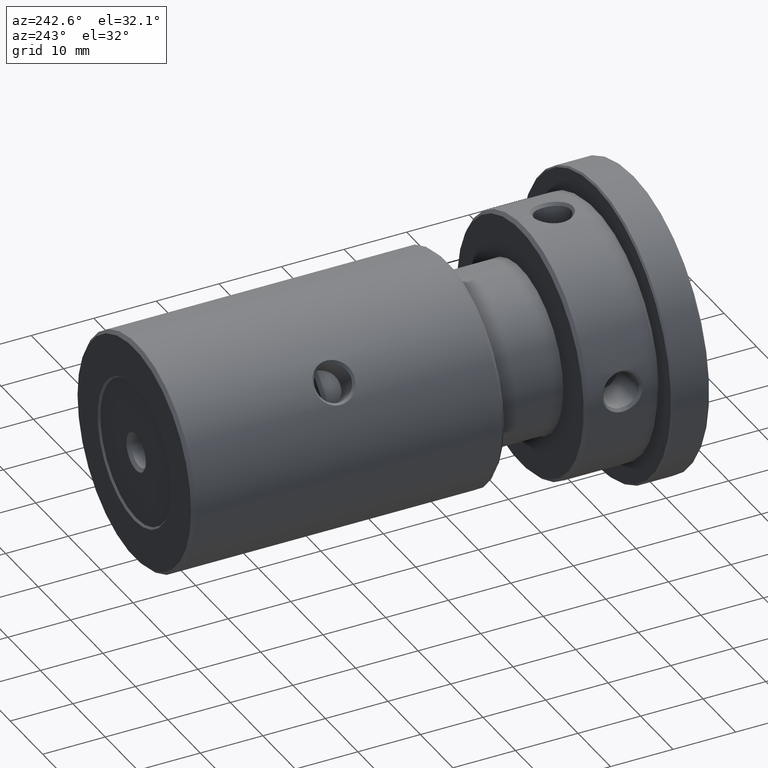
[diagram: clean part render]
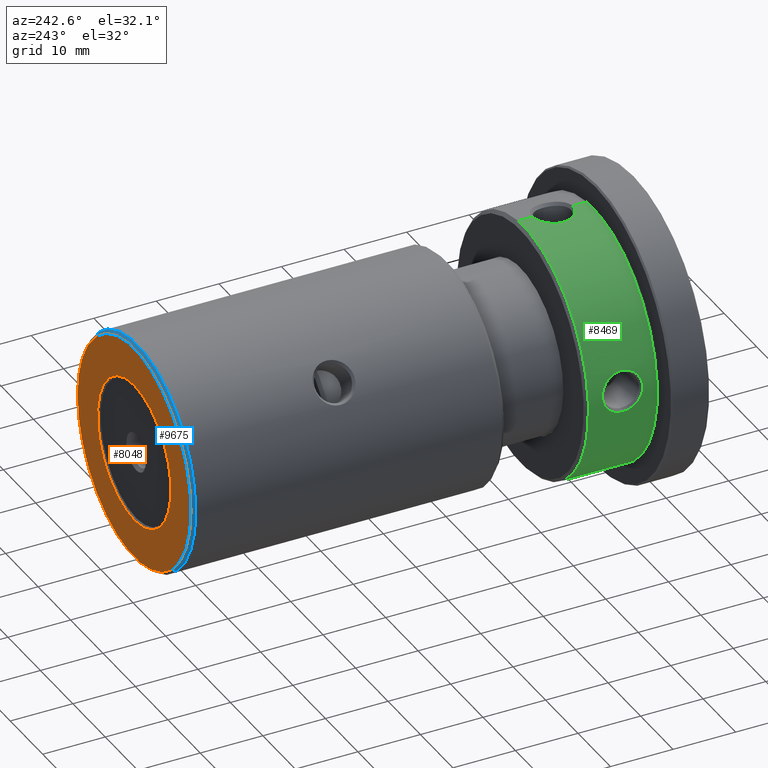
[diagram: same view with three faces highlighted in distinct colors, each labeled with its STEP entity id]
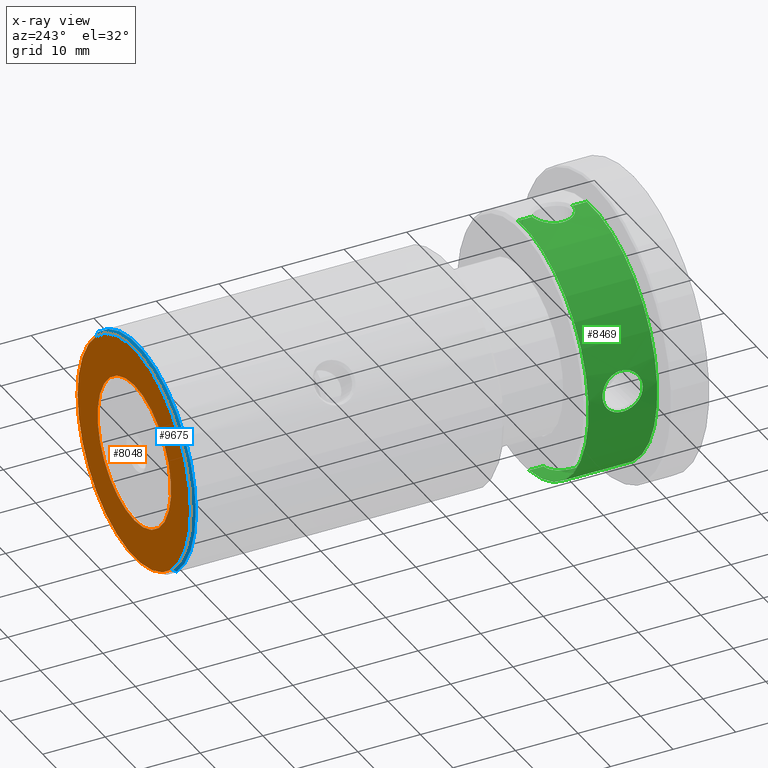
[diagram: x-ray of the same camera — body ghosted, the three highlighted faces saturated]
A machine part, auxiliary view with three faces highlighted in distinct colors.
The next image is the same camera in x-ray (body ghosted, the three faces saturated) — at least one of them is partly hidden behind the body in this view.
Their STEP definitions:

[orange] entity #8048 — the highlighted planar face has unit normal (0, 1, 0).
#100 = DIRECTION ( 'NONE',  ( 0.000000000000000000, 1.000000000000000000, 0.000000000000000000 ) ) ;
#199 = CARTESIAN_POINT ( 'NONE',  ( 1.383850883036508870E-15, 25.00000000000000000, -11.29999999999999716 ) ) ;
#369 = CIRCLE ( 'NONE', #6810, 11.29999999999999716 ) ;
#642 = EDGE_CURVE ( 'NONE', #4291, #8937, #1104, .T. ) ;
#779 = DIRECTION ( 'NONE',  ( 0.000000000000000000, 0.000000000000000000, 1.000000000000000000 ) ) ;
#853 = EDGE_CURVE ( 'NONE', #8937, #4291, #9526, .T. ) ;
#897 = EDGE_LOOP ( 'NONE', ( #1538, #2937 ) ) ;
#1100 = DIRECTION ( 'NONE',  ( 0.000000000000000000, 0.000000000000000000, 1.000000000000000000 ) ) ;
#1104 = CIRCLE ( 'NONE', #5215, 17.50000000000000000 ) ;
#1538 = ORIENTED_EDGE ( 'NONE', *, *, #642, .T. ) ;
#1556 = ORIENTED_EDGE ( 'NONE', *, *, #3182, .T. ) ;
#1753 = CARTESIAN_POINT ( 'NONE',  ( 0.000000000000000000, 25.00000000000000000, 0.000000000000000000 ) ) ;
#1820 = AXIS2_PLACEMENT_3D ( 'NONE', #2496, #10793, #9065 ) ;
#2453 = CARTESIAN_POINT ( 'NONE',  ( 2.173748068486551641E-15, 25.00000000000000000, 17.50000000000000000 ) ) ;
#2496 = CARTESIAN_POINT ( 'NONE',  ( 0.000000000000000000, 25.00000000000000000, 0.000000000000000000 ) ) ;
#2565 = CARTESIAN_POINT ( 'NONE',  ( 0.000000000000000000, 25.00000000000000000, 11.29999999999999716 ) ) ;
#2608 = DIRECTION ( 'NONE',  ( 0.000000000000000000, 1.000000000000000000, 0.000000000000000000 ) ) ;
#2937 = ORIENTED_EDGE ( 'NONE', *, *, #853, .T. ) ;
#3182 = EDGE_CURVE ( 'NONE', #9748, #11583, #9800, .T. ) ;
#3349 = DIRECTION ( 'NONE',  ( -0.000000000000000000, -1.000000000000000000, -0.000000000000000000 ) ) ;
#4141 = EDGE_LOOP ( 'NONE', ( #11968, #1556 ) ) ;
#4237 = AXIS2_PLACEMENT_3D ( 'NONE', #1753, #100, #779 ) ;
#4291 = VERTEX_POINT ( 'NONE', #8415 ) ;
#4338 = PLANE ( 'NONE',  #1820 ) ;
#5215 = AXIS2_PLACEMENT_3D ( 'NONE', #11889, #2608, #10968 ) ;
#5309 = FACE_OUTER_BOUND ( 'NONE', #897, .T. ) ;
#5941 = DIRECTION ( 'NONE',  ( -0.000000000000000000, -1.000000000000000000, -0.000000000000000000 ) ) ;
#6810 = AXIS2_PLACEMENT_3D ( 'NONE', #9566, #5941, #1100 ) ;
#7081 = DIRECTION ( 'NONE',  ( 0.000000000000000000, 0.000000000000000000, 1.000000000000000000 ) ) ;
#7431 = AXIS2_PLACEMENT_3D ( 'NONE', #8809, #3349, #7081 ) ;
#8048 = ADVANCED_FACE ( 'NONE', ( #5309, #11037 ), #4338, .T. ) ;
#8415 = CARTESIAN_POINT ( 'NONE',  ( 0.000000000000000000, 25.00000000000000000, -17.50000000000000000 ) ) ;
#8809 = CARTESIAN_POINT ( 'NONE',  ( 0.000000000000000000, 25.00000000000000000, 0.000000000000000000 ) ) ;
#8937 = VERTEX_POINT ( 'NONE', #2453 ) ;
#9065 = DIRECTION ( 'NONE',  ( 0.000000000000000000, -0.000000000000000000, 1.000000000000000000 ) ) ;
#9526 = CIRCLE ( 'NONE', #4237, 17.50000000000000000 ) ;
#9566 = CARTESIAN_POINT ( 'NONE',  ( 0.000000000000000000, 25.00000000000000000, 0.000000000000000000 ) ) ;
#9748 = VERTEX_POINT ( 'NONE', #199 ) ;
#9800 = CIRCLE ( 'NONE', #7431, 11.29999999999999716 ) ;
#10793 = DIRECTION ( 'NONE',  ( 0.000000000000000000, 1.000000000000000000, 0.000000000000000000 ) ) ;
#10968 = DIRECTION ( 'NONE',  ( 0.000000000000000000, 0.000000000000000000, 1.000000000000000000 ) ) ;
#11037 = FACE_BOUND ( 'NONE', #4141, .T. ) ;
#11205 = EDGE_CURVE ( 'NONE', #11583, #9748, #369, .T. ) ;
#11583 = VERTEX_POINT ( 'NONE', #2565 ) ;
#11889 = CARTESIAN_POINT ( 'NONE',  ( 0.000000000000000000, 25.00000000000000000, 0.000000000000000000 ) ) ;
#11968 = ORIENTED_EDGE ( 'NONE', *, *, #11205, .T. ) ;

[blue] entity #9675 — the highlighted conical surface has half-angle 45 deg.
#366 = DIRECTION ( 'NONE',  ( 0.000000000000000000, -1.000000000000000000, 0.000000000000000000 ) ) ;
#393 = CONICAL_SURFACE ( 'NONE', #3520, 17.50000000000000000, 0.7853981633974344012 ) ;
#594 = VECTOR ( 'NONE', #8325, 999.9999999999998863 ) ;
#642 = EDGE_CURVE ( 'NONE', #4291, #8937, #1104, .T. ) ;
#858 = CIRCLE ( 'NONE', #2419, 18.00000000000000000 ) ;
#884 = CARTESIAN_POINT ( 'NONE',  ( 2.143131898507868248E-15, 25.00000000000000000, 17.50000000000000000 ) ) ;
#1104 = CIRCLE ( 'NONE', #5215, 17.50000000000000000 ) ;
#2027 = DIRECTION ( 'NONE',  ( 0.000000000000000000, 0.000000000000000000, -1.000000000000000000 ) ) ;
#2100 = EDGE_CURVE ( 'NONE', #2826, #6419, #858, .T. ) ;
#2419 = AXIS2_PLACEMENT_3D ( 'NONE', #8936, #366, #9747 ) ;
#2453 = CARTESIAN_POINT ( 'NONE',  ( 2.173748068486551641E-15, 25.00000000000000000, 17.50000000000000000 ) ) ;
#2552 = CARTESIAN_POINT ( 'NONE',  ( 0.000000000000000000, 24.49999999999998934, -18.00000000000000000 ) ) ;
#2608 = DIRECTION ( 'NONE',  ( 0.000000000000000000, 1.000000000000000000, 0.000000000000000000 ) ) ;
#2644 = EDGE_CURVE ( 'NONE', #4291, #6419, #12019, .T. ) ;
#2826 = VERTEX_POINT ( 'NONE', #6709 ) ;
#2885 = LINE ( 'NONE', #884, #4316 ) ;
#3520 = AXIS2_PLACEMENT_3D ( 'NONE', #11368, #11430, #2027 ) ;
#4080 = EDGE_CURVE ( 'NONE', #8937, #2826, #2885, .T. ) ;
#4291 = VERTEX_POINT ( 'NONE', #8415 ) ;
#4316 = VECTOR ( 'NONE', #9450, 999.9999999999998863 ) ;
#4826 = ORIENTED_EDGE ( 'NONE', *, *, #642, .F. ) ;
#5215 = AXIS2_PLACEMENT_3D ( 'NONE', #11889, #2608, #10968 ) ;
#5437 = CARTESIAN_POINT ( 'NONE',  ( 0.000000000000000000, 25.00000000000000000, -17.50000000000000000 ) ) ;
#5481 = ORIENTED_EDGE ( 'NONE', *, *, #2644, .T. ) ;
#5658 = ORIENTED_EDGE ( 'NONE', *, *, #2100, .F. ) ;
#6419 = VERTEX_POINT ( 'NONE', #2552 ) ;
#6709 = CARTESIAN_POINT ( 'NONE',  ( 2.204364238465235428E-15, 24.49999999999998934, 18.00000000000000000 ) ) ;
#8325 = DIRECTION ( 'NONE',  ( 0.000000000000000000, -0.7071067811865574537, -0.7071067811865376918 ) ) ;
#8415 = CARTESIAN_POINT ( 'NONE',  ( 0.000000000000000000, 25.00000000000000000, -17.50000000000000000 ) ) ;
#8936 = CARTESIAN_POINT ( 'NONE',  ( 0.000000000000000000, 24.49999999999998934, 0.000000000000000000 ) ) ;
#8937 = VERTEX_POINT ( 'NONE', #2453 ) ;
#9446 = ORIENTED_EDGE ( 'NONE', *, *, #4080, .F. ) ;
#9450 = DIRECTION ( 'NONE',  ( 8.659560562354813296E-17, -0.7071067811865574537, 0.7071067811865376918 ) ) ;
#9511 = FACE_OUTER_BOUND ( 'NONE', #10403, .T. ) ;
#9675 = ADVANCED_FACE ( 'NONE', ( #9511 ), #393, .T. ) ;
#9747 = DIRECTION ( 'NONE',  ( 0.000000000000000000, 0.000000000000000000, 1.000000000000000000 ) ) ;
#10403 = EDGE_LOOP ( 'NONE', ( #9446, #4826, #5481, #5658 ) ) ;
#10968 = DIRECTION ( 'NONE',  ( 0.000000000000000000, 0.000000000000000000, 1.000000000000000000 ) ) ;
#11368 = CARTESIAN_POINT ( 'NONE',  ( 0.000000000000000000, 25.00000000000000000, 0.000000000000000000 ) ) ;
#11430 = DIRECTION ( 'NONE',  ( 0.000000000000000000, -1.000000000000000000, 0.000000000000000000 ) ) ;
#11889 = CARTESIAN_POINT ( 'NONE',  ( 0.000000000000000000, 25.00000000000000000, 0.000000000000000000 ) ) ;
#12019 = LINE ( 'NONE', #5437, #594 ) ;

[green] entity #8469 — the highlighted cylindrical surface (partial cylindrical patch) has radius 20 mm, axis along (0, -1, 0).
#29 = CARTESIAN_POINT ( 'NONE',  ( 1.645448176409233243, -2.780378231756022611, -19.93242638923062771 ) ) ;
#65 = CARTESIAN_POINT ( 'NONE',  ( 2.788262015685843309, -1.698027887239357048, 19.80477755226930014 ) ) ;
#84 = CARTESIAN_POINT ( 'NONE',  ( 1.652714889811817134, 2.805758502887332195, -19.93554880062650980 ) ) ;
#128 = CARTESIAN_POINT ( 'NONE',  ( 19.96650705544221083, -3.005061850438728754, 1.161213496027606817 ) ) ;
#146 = CARTESIAN_POINT ( 'NONE',  ( 19.82937915713283061, 1.959213789856852683, 2.609622977698397683 ) ) ;
#186 = CARTESIAN_POINT ( 'NONE',  ( 19.98628399507041564, -3.128114863103091725, 0.7480492119858004330 ) ) ;
#226 = VERTEX_POINT ( 'NONE', #8189 ) ;
#235 = CARTESIAN_POINT ( 'NONE',  ( -6.033831151956498366E-15, -3.210814758110483336, -19.99999999993138289 ) ) ;
#311 = CARTESIAN_POINT ( 'NONE',  ( 19.74250960291540835, -0.7285416293103933461, 3.199025551527902245 ) ) ;
#370 = CARTESIAN_POINT ( 'NONE',  ( 19.94777545470313029, -2.884433045891778402, 1.457922330669101818 ) ) ;
#567 = CARTESIAN_POINT ( 'NONE',  ( 19.88272390286267566, 2.420099909733571142, -2.168143128924275853 ) ) ;
#692 = CARTESIAN_POINT ( 'NONE',  ( 19.94740817882312456, 2.881321743100946797, -1.452594321424510948 ) ) ;
#729 = CARTESIAN_POINT ( 'NONE',  ( 1.458472052092044891, 2.884325182636749751, 19.94775618502438519 ) ) ;
#840 = CARTESIAN_POINT ( 'NONE',  ( -6.033831151956498366E-15, -3.210814758110483336, -19.99999999993138289 ) ) ;
#878 = FACE_OUTER_BOUND ( 'NONE', #11169, .T. ) ;
#885 = CARTESIAN_POINT ( 'NONE',  ( 3.282740451652369273, 0.2126254003595224318, -19.72875097761793128 ) ) ;
#940 = CARTESIAN_POINT ( 'NONE',  ( 1.057610121580247808, 3.041468652754554913, -19.97228608819717266 ) ) ;
#1043 = CARTESIAN_POINT ( 'NONE',  ( 19.97223225382964173, -3.041136860647124962, 1.058605149336064422 ) ) ;
#1086 = DIRECTION ( 'NONE',  ( -0.000000000000000000, -1.000000000000000000, -0.000000000000000000 ) ) ;
#1167 = CARTESIAN_POINT ( 'NONE',  ( 19.90058672312363086, -2.554998944933755123, -1.999637015282927033 ) ) ;
#1227 = VERTEX_POINT ( 'NONE', #5425 ) ;
#1232 = CARTESIAN_POINT ( 'NONE',  ( 19.99645140534184051, -3.189857657510478894, 0.4317793585198230755 ) ) ;
#1289 = CARTESIAN_POINT ( 'NONE',  ( 19.84720313151283122, -2.122928777752652874, -2.472248605864519444 ) ) ;
#1303 = CARTESIAN_POINT ( 'NONE',  ( 19.74605402600886705, 0.8343868422487219494, 3.177287652191354894 ) ) ;
#1424 = CARTESIAN_POINT ( 'NONE',  ( 19.95420609217262609, 2.925860746832887660, -1.356287689756638271 ) ) ;
#1677 = CARTESIAN_POINT ( 'NONE',  ( 3.198504523284523504, -0.8378273500606059354, -19.74329318168382486 ) ) ;
#1738 = CARTESIAN_POINT ( 'NONE',  ( 2.474643555688105678, -2.120262560548225927, -19.84690317784533420 ) ) ;
#1772 = CARTESIAN_POINT ( 'NONE',  ( 0.000000000000000000, -5.500000000000006217, -20.00000000000000000 ) ) ;
#1797 = CARTESIAN_POINT ( 'NONE',  ( 1.455010140756365145, -2.880156976023653392, -19.94723206246024461 ) ) ;
#1876 = CARTESIAN_POINT ( 'NONE',  ( 3.282838605588686232, 2.032879073410320814E-17, 19.72873464491974360 ) ) ;
#1925 = VERTEX_POINT ( 'NONE', #10353 ) ;
#1994 = VERTEX_POINT ( 'NONE', #7836 ) ;
#2010 = CARTESIAN_POINT ( 'NONE',  ( 1.647326213085843261, -2.785168786309591304, 19.93284144838958483 ) ) ;
#2054 = VERTEX_POINT ( 'NONE', #11540 ) ;
#2103 = ORIENTED_EDGE ( 'NONE', *, *, #6585, .T. ) ;
#2180 = VERTEX_POINT ( 'NONE', #5990 ) ;
#2218 = CARTESIAN_POINT ( 'NONE',  ( 19.72873467711491102, 0.2111624719445459875, 3.282838412106755754 ) ) ;
#2336 = CARTESIAN_POINT ( 'NONE',  ( 19.75611551356666595, 1.035529788129040174, -3.114955750776942534 ) ) ;
#2382 = B_SPLINE_CURVE_WITH_KNOTS ( 'NONE', 3,
 ( #840, #3531, #6518, #12124, #6400, #6461 ),
 .UNSPECIFIED., .F., .F.,
 ( 4, 2, 4 ),
 ( 0.4998245239257805284, 0.4999122619628902364, 0.5000000000000000000 ),
 .UNSPECIFIED. ) ;
#2396 = CARTESIAN_POINT ( 'NONE',  ( 20.00000644627998270, 3.210849722074044621, 0.2137411082492177705 ) ) ;
#2435 = EDGE_CURVE ( 'NONE', #1994, #9350, #11775, .T. ) ;
#2460 = CARTESIAN_POINT ( 'NONE',  ( 19.98286610281723696, 3.107354172718620688, 0.8544976949193675564 ) ) ;
#2592 = CARTESIAN_POINT ( 'NONE',  ( -1.386390959549365907E-14, 3.210814762702384861, -20.00000000000000000 ) ) ;
#2615 = CARTESIAN_POINT ( 'NONE',  ( 2.246285954113764305, 2.343824296800412377, 19.87360138434003431 ) ) ;
#2654 = CARTESIAN_POINT ( 'NONE',  ( 0.003671881833459564055, -3.210812754239917410, -19.99999966293209042 ) ) ;
#2668 = EDGE_CURVE ( 'NONE', #9350, #6893, #2975, .T. ) ;
#2726 = VERTEX_POINT ( 'NONE', #11462 ) ;
#2744 = DIRECTION ( 'NONE',  ( -0.000000000000000000, -1.000000000000000000, -0.000000000000000000 ) ) ;
#2831 = CARTESIAN_POINT ( 'NONE',  ( 2.849688550101806328, -1.607737910934954551, -19.79630358717708560 ) ) ;
#2858 = CARTESIAN_POINT ( 'NONE',  ( 2.449293598294706513E-15, 6.000000000000000000, 20.00000000000000000 ) ) ;
#2868 = CARTESIAN_POINT ( 'NONE',  ( 2.168019966337311200, -2.420228341486001966, 19.88273850966585599 ) ) ;
#2879 = DIRECTION ( 'NONE',  ( -0.000000000000000000, -1.000000000000000000, -0.000000000000000000 ) ) ;
#2908 = CARTESIAN_POINT ( 'NONE',  ( 2.848848941742340379, 1.609320017675354597, 19.79642958081758053 ) ) ;
#2947 = CARTESIAN_POINT ( 'NONE',  ( 19.84719939976694292, 2.122882297731638612, 2.472256534832447894 ) ) ;
#2975 = LINE ( 'NONE', #2858, #11764 ) ;
#2990 = CARTESIAN_POINT ( 'NONE',  ( 3.261557881040287210, -0.4216969844267650647, 19.73231050155387933 ) ) ;
#2994 = CARTESIAN_POINT ( 'NONE',  ( 19.90008765277870140, -2.551345600623684096, 2.004736211350582220 ) ) ;
#3123 = CARTESIAN_POINT ( 'NONE',  ( 19.72873464491973294, -8.300922883092143323E-16, 3.282838605588755954 ) ) ;
#3258 = CARTESIAN_POINT ( 'NONE',  ( 19.72870111304530027, 0.2056933734760794663, -3.283040120789300076 ) ) ;
#3314 = AXIS2_PLACEMENT_3D ( 'NONE', #10857, #4398, #8140 ) ;
#3319 = CARTESIAN_POINT ( 'NONE',  ( 19.92468484548815155, 2.726941661114982818, -1.736354336858334957 ) ) ;
#3531 = CARTESIAN_POINT ( 'NONE',  ( 0.0006052860454226343138, -3.210814756824576399, -20.00000000000000000 ) ) ;
#3538 = CARTESIAN_POINT ( 'NONE',  ( 0.8587820529182167428, 3.127784615539192625, 19.98556888260209874 ) ) ;
#3575 = CARTESIAN_POINT ( 'NONE',  ( 2.612262454800140521, -1.955841112787716440, -19.82903037002825641 ) ) ;
#3581 = VECTOR ( 'NONE', #8609, 1000.000000000000000 ) ;
#3690 = CARTESIAN_POINT ( 'NONE',  ( 0.8504744674589390652, 3.103003708295363872, -19.98217815800530062 ) ) ;
#3699 = LINE ( 'NONE', #9865, #8077 ) ;
#3751 = CARTESIAN_POINT ( 'NONE',  ( 2.950157674611411540, -1.424201092918032430, -19.78139489282240149 ) ) ;
#3788 = CARTESIAN_POINT ( 'NONE',  ( 0.8531331328371476452, -3.107586258007648095, 19.98290450845388122 ) ) ;
#3846 = CARTESIAN_POINT ( 'NONE',  ( 2.002778753989504334, -2.552645182737462992, 19.90026957409184760 ) ) ;
#3849 = CARTESIAN_POINT ( 'NONE',  ( 19.88275746355927254, -2.420358174375162097, -2.167819401613078067 ) ) ;
#3909 = CARTESIAN_POINT ( 'NONE',  ( 3.176942696031591851, -0.8361007945657559226, 19.74611031690142582 ) ) ;
#3979 = CARTESIAN_POINT ( 'NONE',  ( 19.99997589873214565, -3.210672054760594918, 0.2178538555594153325 ) ) ;
#4040 = CARTESIAN_POINT ( 'NONE',  ( 3.282838605588686232, 2.032879073410320814E-17, 19.72873464491974360 ) ) ;
#4103 = CARTESIAN_POINT ( 'NONE',  ( 19.82932171881024175, -1.972995465141947902, 2.624973066476333550 ) ) ;
#4198 = ORIENTED_EDGE ( 'NONE', *, *, #2668, .T. ) ;
#4210 = CARTESIAN_POINT ( 'NONE',  ( 2.473850208301768383, 2.121101540828565390, 19.84699965818634482 ) ) ;
#4273 = CARTESIAN_POINT ( 'NONE',  ( 1.645974837051989326, 2.785966062072701810, 19.93295746343483188 ) ) ;
#4347 = B_SPLINE_CURVE_WITH_KNOTS ( 'NONE', 3,
 ( #4040, #7778, #2990, #3909, #4762, #11287, #11544, #10621, #65, #9377, #11412, #2868, #3846, #2010, #8455, #10419, #3788, #5750, #10357, #9493, #7646, #6723 ),
 .UNSPECIFIED., .F., .F.,
 ( 4, 2, 2, 2, 2, 2, 2, 2, 2, 2, 4 ),
 ( 0.000000000000000000, 0.03124635610411448383, 0.06249271220822896766, 0.07811589026028618876, 0.09373906831234342374, 0.1249854244164578798, 0.1562317805205722943, 0.1874781366246867365, 0.2187244927288011509, 0.2343476707808583304, 0.2499708488329155376 ),
 .UNSPECIFIED. ) ;
#4361 = CARTESIAN_POINT ( 'NONE',  ( 19.79651857104729729, 1.610252450665276669, -2.848199847559597764 ) ) ;
#4398 = DIRECTION ( 'NONE',  ( -0.000000000000000000, 1.000000000000000000, -0.000000000000000000 ) ) ;
#4428 = ORIENTED_EDGE ( 'NONE', *, *, #5871, .F. ) ;
#4458 = CARTESIAN_POINT ( 'NONE',  ( 1.913294746564812909, 2.611225266416112856, 19.90847331699734823 ) ) ;
#4473 = ORIENTED_EDGE ( 'NONE', *, *, #11521, .T. ) ;
#4606 = CARTESIAN_POINT ( 'NONE',  ( 2.005848646365461452, -2.550394245770318147, -19.89996525345702949 ) ) ;
#4689 = CARTESIAN_POINT ( 'NONE',  ( 3.282838797907712713, 0.2098932404907579707, 19.72873461291808894 ) ) ;
#4717 = CARTESIAN_POINT ( 'NONE',  ( 0.000000000000000000, 6.000000000000000000, 0.000000000000000000 ) ) ;
#4762 = CARTESIAN_POINT ( 'NONE',  ( 3.114853310259825481, -1.035494453607555654, 19.75612905799381736 ) ) ;
#4894 = CARTESIAN_POINT ( 'NONE',  ( 19.74370945042432623, -0.8453354932500212193, -3.195876437371848677 ) ) ;
#4955 = CARTESIAN_POINT ( 'NONE',  ( 19.75678944974860229, -1.034368637841888372, 3.109708313225955756 ) ) ;
#5013 = CARTESIAN_POINT ( 'NONE',  ( 19.94793521833513950, -2.885495965603578572, -1.456004418399542644 ) ) ;
#5029 = CARTESIAN_POINT ( 'NONE',  ( 19.75609315247480424, 1.034963573634895662, 3.115088987422935052 ) ) ;
#5086 = CARTESIAN_POINT ( 'NONE',  ( 19.73222121862321643, 0.4180549159754707311, -3.262096791887972635 ) ) ;
#5188 = CARTESIAN_POINT ( 'NONE',  ( 19.72873498630114142, -0.003589634830921360764, -3.282836554002830365 ) ) ;
#5212 = CARTESIAN_POINT ( 'NONE',  ( 19.99998708022929605, 3.210744681819874380, -0.4292892277317579275 ) ) ;
#5252 = ORIENTED_EDGE ( 'NONE', *, *, #9506, .T. ) ;
#5270 = CARTESIAN_POINT ( 'NONE',  ( 19.88267671504706158, 2.419697900915464661, 2.168534766393184210 ) ) ;
#5425 = CARTESIAN_POINT ( 'NONE',  ( 19.72873464491973294, -8.300922883092143323E-16, 3.282838605588755954 ) ) ;
#5468 = CARTESIAN_POINT ( 'NONE',  ( 3.261378685584664705, 0.4224534256919968978, -19.73233956404393297 ) ) ;
#5507 = ORIENTED_EDGE ( 'NONE', *, *, #6985, .F. ) ;
#5529 = CARTESIAN_POINT ( 'NONE',  ( 2.170600540014611113, -2.417961816402737885, -19.88245255933393096 ) ) ;
#5590 = CARTESIAN_POINT ( 'NONE',  ( 2.949178169061086763, 1.425848765906332360, -19.78153850173927708 ) ) ;
#5611 = CARTESIAN_POINT ( 'NONE',  ( 3.177748184211582227, 0.8332669286766339889, 19.74598037606912726 ) ) ;
#5671 = ORIENTED_EDGE ( 'NONE', *, *, #10596, .T. ) ;
#5691 = CARTESIAN_POINT ( 'NONE',  ( 19.88230362062117962, -2.416732346450169544, 2.171894010854437340 ) ) ;
#5721 = ORIENTED_EDGE ( 'NONE', *, *, #8266, .T. ) ;
#5750 = CARTESIAN_POINT ( 'NONE',  ( 0.5375516193208236260, -3.169215543269286339, 19.99305167903709801 ) ) ;
#5753 = CARTESIAN_POINT ( 'NONE',  ( 19.76241098728779022, -1.132063641312494040, 3.073896169526197486 ) ) ;
#5807 = ORIENTED_EDGE ( 'NONE', *, *, #11141, .T. ) ;
#5813 = CARTESIAN_POINT ( 'NONE',  ( 19.72873498630114142, -0.003589634830921360764, -3.282836554002830365 ) ) ;
#5871 = EDGE_CURVE ( 'NONE', #1994, #226, #3699, .T. ) ;
#5878 = CARTESIAN_POINT ( 'NONE',  ( 19.80499380801107989, -1.700448300283034619, -2.786727627195626944 ) ) ;
#5957 = CARTESIAN_POINT ( 'NONE',  ( 19.73237162064740602, 0.4235559176834818862, 3.261183320130561558 ) ) ;
#5990 = CARTESIAN_POINT ( 'NONE',  ( 3.282838605588686232, 2.032879073410320814E-17, 19.72873464491974360 ) ) ;
#6050 = ORIENTED_EDGE ( 'NONE', *, *, #10983, .T. ) ;
#6381 = CARTESIAN_POINT ( 'NONE',  ( 0.4323606396473888003, -3.210350768100870056, -19.99992095820766380 ) ) ;
#6400 = CARTESIAN_POINT ( 'NONE',  ( 0.003070084871194146171, -3.210813402780028802, -19.99999977341845891 ) ) ;
#6461 = CARTESIAN_POINT ( 'NONE',  ( 0.003671881833459564055, -3.210812754239917410, -19.99999966293209042 ) ) ;
#6502 = CARTESIAN_POINT ( 'NONE',  ( 0.2144284334812310566, 3.210815145380904401, -20.00000000000000000 ) ) ;
#6518 = CARTESIAN_POINT ( 'NONE',  ( 0.001213919222626789335, -3.210814589242887873, -19.99999997252300332 ) ) ;
#6550 = DIRECTION ( 'NONE',  ( 0.000000000000000000, 0.000000000000000000, -1.000000000000000000 ) ) ;
#6557 = CARTESIAN_POINT ( 'NONE',  ( 3.109396314410805662, 1.035256176498417613, -19.75683849302837913 ) ) ;
#6585 = EDGE_CURVE ( 'NONE', #11882, #2054, #2382, .T. ) ;
#6663 = CARTESIAN_POINT ( 'NONE',  ( 19.82964123137336898, -1.961760263173156327, -2.607652401902319284 ) ) ;
#6723 = CARTESIAN_POINT ( 'NONE',  ( -8.972218760219603006E-14, -3.210814757519488527, 19.99999999999141664 ) ) ;
#6726 = CARTESIAN_POINT ( 'NONE',  ( 20.00004783158570021, -3.211097968232606625, -0.4290358298322421993 ) ) ;
#6873 = CARTESIAN_POINT ( 'NONE',  ( 19.72873464491973294, -8.300922883092143323E-16, 3.282838605588755954 ) ) ;
#6893 = VERTEX_POINT ( 'NONE', #11031 ) ;
#6985 = EDGE_CURVE ( 'NONE', #11882, #7837, #8548, .T. ) ;
#6990 = CARTESIAN_POINT ( 'NONE',  ( 19.74599425326635682, 0.8335622237823600011, -3.177662765351638274 ) ) ;
#7029 = DIRECTION ( 'NONE',  ( -0.000000000000000000, -1.000000000000000000, -0.000000000000000000 ) ) ;
#7112 = CARTESIAN_POINT ( 'NONE',  ( 19.99650559591247756, 3.190191882907411625, 0.4299627267402792441 ) ) ;
#7235 = CARTESIAN_POINT ( 'NONE',  ( 19.90020613798921190, 2.552190119086198195, -2.003438535654217478 ) ) ;
#7250 = CARTESIAN_POINT ( 'NONE',  ( 0.7450486787383924225, 3.128804800298196742, -19.98639646576399898 ) ) ;
#7273 = B_SPLINE_CURVE_WITH_KNOTS ( 'NONE', 3,
 ( #2654, #6381, #11989, #10151, #1797, #29, #11250, #4606, #5529, #1738, #3575, #2831, #3751, #1677, #8474, #885, #5468, #9224, #7367, #6557, #8299, #5590, #8357, #12048, #12106, #10318, #84, #11131, #940, #3690, #7250, #11193, #6502, #2592 ),
 .UNSPECIFIED., .F., .F.,
 ( 4, 2, 2, 2, 2, 2, 2, 2, 2, 2, 2, 2, 2, 2, 2, 2, 4 ),
 ( 0.5000000000000000000, 0.5625000000000002220, 0.5781250000000002220, 0.5937500000000002220, 0.6250000000000001110, 0.6562500000000001110, 0.6875000000000000000, 0.7499999999999998890, 0.7812499999999997780, 0.7968749999999997780, 0.8124999999999997780, 0.8437499999999997780, 0.8749999999999997780, 0.9375000000000000000, 0.9531250000000000000, 0.9687500000000000000, 1.000000000000000000 ),
 .UNSPECIFIED. ) ;
#7367 = CARTESIAN_POINT ( 'NONE',  ( 3.172251864174497893, 0.8330732252519678083, -19.74684356523647111 ) ) ;
#7508 = CARTESIAN_POINT ( 'NONE',  ( 2.950640872200084530, 1.422923580440521141, 19.78131941828008777 ) ) ;
#7586 = CARTESIAN_POINT ( 'NONE',  ( 19.79700758994288634, -1.609364465934681743, -2.842735784911841979 ) ) ;
#7619 = CARTESIAN_POINT ( 'NONE',  ( 0.000000000000000000, 6.000000000000000000, -20.00000000000000000 ) ) ;
#7646 = CARTESIAN_POINT ( 'NONE',  ( 0.1076043394402273062, -3.210813076991013038, 20.00000000000000355 ) ) ;
#7649 = CARTESIAN_POINT ( 'NONE',  ( 19.93297195995072713, -2.786101374541769538, 1.645929740053867274 ) ) ;
#7778 = CARTESIAN_POINT ( 'NONE',  ( 3.282838412129251537, -0.2111378494144548201, 19.72873467711117001 ) ) ;
#7779 = CARTESIAN_POINT ( 'NONE',  ( 19.78209360916607906, -1.423154493321040270, -2.944728968388288681 ) ) ;
#7836 = CARTESIAN_POINT ( 'NONE',  ( 0.000000000000000000, 5.499999999999996447, -20.00000000000000000 ) ) ;
#7837 = VERTEX_POINT ( 'NONE', #1772 ) ;
#8000 = VERTEX_POINT ( 'NONE', #5188 ) ;
#8077 = VECTOR ( 'NONE', #7029, 1000.000000000000000 ) ;
#8140 = DIRECTION ( 'NONE',  ( 0.000000000000000000, 0.000000000000000000, 1.000000000000000000 ) ) ;
#8160 = CARTESIAN_POINT ( 'NONE',  ( 19.82925945942285750, 1.958047067512596273, -2.610528528162101569 ) ) ;
#8189 = CARTESIAN_POINT ( 'NONE',  ( -1.386390959549365907E-14, 3.210814762702384861, -20.00000000000000000 ) ) ;
#8234 = CARTESIAN_POINT ( 'NONE',  ( 2.449293598294706513E-15, 5.499999999999996447, 20.00000000000000000 ) ) ;
#8266 = EDGE_CURVE ( 'NONE', #1925, #7837, #10776, .T. ) ;
#8269 = EDGE_CURVE ( 'NONE', #6893, #2180, #10073, .T. ) ;
#8299 = CARTESIAN_POINT ( 'NONE',  ( 3.072492894398635599, 1.135677600519465980, -19.76262929764242671 ) ) ;
#8332 = ORIENTED_EDGE ( 'NONE', *, *, #8269, .T. ) ;
#8357 = CARTESIAN_POINT ( 'NONE',  ( 2.848576126890665083, 1.609840888583162766, -19.79647121021033840 ) ) ;
#8377 = CARTESIAN_POINT ( 'NONE',  ( 3.114608081319695465, 1.036052041465206353, 19.75616602442135417 ) ) ;
#8411 = EDGE_LOOP ( 'NONE', ( #6050, #5807 ) ) ;
#8455 = CARTESIAN_POINT ( 'NONE',  ( 1.456218602699655973, -2.885379585517986012, 19.94791767991722509 ) ) ;
#8469 = ADVANCED_FACE ( 'NONE', ( #9155, #878 ), #10199, .T. ) ;
#8474 = CARTESIAN_POINT ( 'NONE',  ( 3.283033039697544453, -0.4193089242051484811, -19.72870229131545727 ) ) ;
#8531 = CARTESIAN_POINT ( 'NONE',  ( 19.78145698361506888, 1.425006938202609374, 2.949738234862943287 ) ) ;
#8548 = LINE ( 'NONE', #7619, #3581 ) ;
#8577 = CARTESIAN_POINT ( 'NONE',  ( 19.72880273281285213, -0.4221556514449230635, -3.282429420429896272 ) ) ;
#8609 = DIRECTION ( 'NONE',  ( -0.000000000000000000, -1.000000000000000000, -0.000000000000000000 ) ) ;
#8761 = CARTESIAN_POINT ( 'NONE',  ( 19.98211626823101028, -3.102615619029691185, 0.8519011128125169030 ) ) ;
#8836 = CARTESIAN_POINT ( 'NONE',  ( 19.90022740704160853, 2.552352788044049525, 2.003269558950784734 ) ) ;
#8896 = CARTESIAN_POINT ( 'NONE',  ( 19.72873498630114142, -0.003589634830921360764, -3.282836554002830365 ) ) ;
#8959 = CARTESIAN_POINT ( 'NONE',  ( 19.98541069510090651, 3.126736363061511259, -0.8608556259309333436 ) ) ;
#9127 = CARTESIAN_POINT ( 'NONE',  ( 0.000000000000000000, 5.499999999999996447, 0.000000000000000000 ) ) ;
#9155 = FACE_BOUND ( 'NONE', #8411, .T. ) ;
#9191 = DIRECTION ( 'NONE',  ( 0.000000000000000000, -1.000000000000000000, 0.000000000000000000 ) ) ;
#9224 = CARTESIAN_POINT ( 'NONE',  ( 3.198297326376086769, 0.7315767819263828686, -19.74262769016515406 ) ) ;
#9350 = VERTEX_POINT ( 'NONE', #8234 ) ;
#9377 = CARTESIAN_POINT ( 'NONE',  ( 2.609476125055929963, -1.959454237440247049, 19.82940014737482670 ) ) ;
#9493 = CARTESIAN_POINT ( 'NONE',  ( 0.2143041105801389845, -3.205713804571891146, 19.99914190710003936 ) ) ;
#9506 = EDGE_CURVE ( 'NONE', #2054, #226, #7273, .T. ) ;
#9629 = CARTESIAN_POINT ( 'NONE',  ( 19.98565426600000805, -3.128297963787016744, -0.8566778420700779106 ) ) ;
#9657 = B_SPLINE_CURVE_WITH_KNOTS ( 'NONE', 3,
 ( #6873, #2218, #5957, #1303, #5029, #8531, #11371, #146, #2947, #5270, #8836, #11799, #10937, #9888, #2460, #7112, #2396, #5212, #8959, #1424, #692, #9823, #3319, #7235, #567, #10754, #8160, #4361, #11919, #2336, #6990, #5086, #3258, #8896 ),
 .UNSPECIFIED., .F., .F.,
 ( 4, 2, 2, 2, 2, 2, 2, 2, 2, 2, 2, 2, 2, 2, 2, 2, 4 ),
 ( 0.000000000000000000, 0.03125000000000000694, 0.06250000000000000000, 0.09374999999999998612, 0.1249999999999999584, 0.1562499999999999167, 0.1874999999999998890, 0.2187499999999998890, 0.2499999999999998612, 0.3124999999999998335, 0.3281249999999998335, 0.3437499999999998335, 0.3749999999999998335, 0.4062499999999998890, 0.4374999999999999445, 0.4687500000000000000, 0.5000000000000000000 ),
 .UNSPECIFIED. ) ;
#9691 = CARTESIAN_POINT ( 'NONE',  ( 19.93312469777562868, -2.787099344590044492, -1.643909942904831833 ) ) ;
#9823 = CARTESIAN_POINT ( 'NONE',  ( 19.93262397683039566, 2.781731480912647214, -1.643053472501880607 ) ) ;
#9864 = CARTESIAN_POINT ( 'NONE',  ( 2.609740489171096023, 1.959182750246970750, 19.82936759002455673 ) ) ;
#9865 = CARTESIAN_POINT ( 'NONE',  ( 0.000000000000000000, 6.000000000000000000, -20.00000000000000000 ) ) ;
#9888 = CARTESIAN_POINT ( 'NONE',  ( 19.97296534796250711, 3.046616977492478284, 1.058292577240012022 ) ) ;
#10073 = B_SPLINE_CURVE_WITH_KNOTS ( 'NONE', 3,
 ( #11898, #10976, #3538, #729, #4273, #4458, #11953, #10115, #2615, #4210, #9864, #2908, #7508, #8377, #5611, #11272, #4689, #1876 ),
 .UNSPECIFIED., .F., .F.,
 ( 4, 2, 2, 2, 2, 2, 2, 2, 4 ),
 ( 0.7498928715029808956, 0.8124196536272357827, 0.8436830446893631708, 0.8593147402204268648, 0.8749464357514905588, 0.9062098268136179469, 0.9374732178757452239, 0.9687366089378726119, 1.000000000000000000 ),
 .UNSPECIFIED. ) ;
#10115 = CARTESIAN_POINT ( 'NONE',  ( 2.167398831096537748, 2.413861959751399944, 19.88238966976567923 ) ) ;
#10151 = CARTESIAN_POINT ( 'NONE',  ( 1.358991212850465091, -2.924656403708406405, -19.95402140923711443 ) ) ;
#10199 = CYLINDRICAL_SURFACE ( 'NONE', #11757, 20.00000000000000000 ) ;
#10290 = CARTESIAN_POINT ( 'NONE',  ( 2.449293598294706513E-15, 6.000000000000000000, 20.00000000000000000 ) ) ;
#10318 = CARTESIAN_POINT ( 'NONE',  ( 2.017423936234673754, 2.567221460532647992, -19.90031758273571683 ) ) ;
#10353 = CARTESIAN_POINT ( 'NONE',  ( 2.449293598294706513E-15, -5.500000000000006217, 20.00000000000000000 ) ) ;
#10357 = CARTESIAN_POINT ( 'NONE',  ( 0.4297131567307911348, -3.184948688163439456, 19.99567327886382628 ) ) ;
#10382 = AXIS2_PLACEMENT_3D ( 'NONE', #9127, #9191, #11957 ) ;
#10419 = CARTESIAN_POINT ( 'NONE',  ( 1.057046955025887858, -3.047153037327558156, 19.97304794262691630 ) ) ;
#10423 = CARTESIAN_POINT ( 'NONE',  ( 19.73226488625287445, -0.4191618434874207488, 3.261828024420421634 ) ) ;
#10596 = EDGE_CURVE ( 'NONE', #2180, #2726, #4347, .T. ) ;
#10621 = CARTESIAN_POINT ( 'NONE',  ( 2.842782921595482737, -1.609297427702996997, 19.79700104437628383 ) ) ;
#10622 = CARTESIAN_POINT ( 'NONE',  ( 19.77523605625691872, -1.329136502935545749, -2.990279165215873114 ) ) ;
#10754 = CARTESIAN_POINT ( 'NONE',  ( 19.84710889919358934, 2.122117896607311316, -2.473018958382500632 ) ) ;
#10776 = CIRCLE ( 'NONE', #3314, 20.00000000000000000 ) ;
#10857 = CARTESIAN_POINT ( 'NONE',  ( 0.000000000000000000, -5.500000000000006217, 0.000000000000000000 ) ) ;
#10937 = CARTESIAN_POINT ( 'NONE',  ( 19.94805301913149975, 2.886255173672728880, 1.454135040452353644 ) ) ;
#10976 = CARTESIAN_POINT ( 'NONE',  ( 0.4326722879204864536, 3.210815711991565458, 20.00000000000000000 ) ) ;
#10983 = EDGE_CURVE ( 'NONE', #1227, #8000, #9657, .T. ) ;
#11031 = CARTESIAN_POINT ( 'NONE',  ( 2.528436336588759464E-13, 3.210814769336804542, 20.00000000172522263 ) ) ;
#11119 = B_SPLINE_CURVE_WITH_KNOTS ( 'NONE', 3,
 ( #5813, #8577, #4894, #10622, #7779, #7586, #5878, #6663, #1289, #3849, #1167, #9691, #5013, #9629, #6726, #3979, #1232, #186, #8761, #1043, #128, #370, #7649, #2994, #5691, #4103, #11290, #5753, #4955, #11354, #311, #10423, #11545, #3123 ),
 .UNSPECIFIED., .F., .F.,
 ( 4, 2, 2, 2, 2, 2, 2, 2, 2, 2, 2, 2, 2, 2, 2, 2, 4 ),
 ( 0.5000000000000000000, 0.5624999999999997780, 0.5781249999999997780, 0.5937499999999997780, 0.6249999999999997780, 0.6562499999999998890, 0.6874999999999998890, 0.7500000000000000000, 0.7812500000000000000, 0.7968750000000000000, 0.8125000000000000000, 0.8437500000000000000, 0.8750000000000000000, 0.9375000000000001110, 0.9531250000000001110, 0.9687500000000000000, 1.000000000000000000 ),
 .UNSPECIFIED. ) ;
#11131 = CARTESIAN_POINT ( 'NONE',  ( 1.157502642124562442, 3.006437690369306637, -19.96672321423942265 ) ) ;
#11141 = EDGE_CURVE ( 'NONE', #8000, #1227, #11119, .T. ) ;
#11169 = EDGE_LOOP ( 'NONE', ( #11541, #4198, #8332, #5671, #4473, #5721, #5507, #2103, #5252, #4428 ) ) ;
#11193 = CARTESIAN_POINT ( 'NONE',  ( 0.4285546816818331939, 3.190274495891106010, -19.99652234180687316 ) ) ;
#11250 = CARTESIAN_POINT ( 'NONE',  ( 1.738451640587764135, -2.725676926911732245, -19.92450243703889612 ) ) ;
#11272 = CARTESIAN_POINT ( 'NONE',  ( 3.262062913317829604, 0.4180966349522928782, 19.73222668843847316 ) ) ;
#11287 = CARTESIAN_POINT ( 'NONE',  ( 2.991280231755605978, -1.327026670764260396, 19.77508480892672083 ) ) ;
#11290 = CARTESIAN_POINT ( 'NONE',  ( 19.79390807435612842, -1.616698761187899347, 2.868590979549947573 ) ) ;
#11354 = CARTESIAN_POINT ( 'NONE',  ( 19.74678119765686191, -0.8317059815863553363, 3.172640459760582399 ) ) ;
#11371 = CARTESIAN_POINT ( 'NONE',  ( 19.79662546917133170, 1.611492055580344473, 2.847460250191853337 ) ) ;
#11412 = CARTESIAN_POINT ( 'NONE',  ( 2.473198428161837104, -2.121934437034974419, 19.84708771465286148 ) ) ;
#11462 = CARTESIAN_POINT ( 'NONE',  ( -8.972218760219603006E-14, -3.210814757519488527, 19.99999999999141664 ) ) ;
#11521 = EDGE_CURVE ( 'NONE', #2726, #1925, #12076, .T. ) ;
#11535 = VECTOR ( 'NONE', #2744, 1000.000000000000000 ) ;
#11540 = CARTESIAN_POINT ( 'NONE',  ( 0.003671881833459564055, -3.210812754239917410, -19.99999966293209042 ) ) ;
#11541 = ORIENTED_EDGE ( 'NONE', *, *, #2435, .T. ) ;
#11544 = CARTESIAN_POINT ( 'NONE',  ( 2.944945413480360319, -1.422740263994854093, 19.78206161151995346 ) ) ;
#11545 = CARTESIAN_POINT ( 'NONE',  ( 19.72873461293177755, -0.2098033368267905874, 3.282838797825416766 ) ) ;
#11757 = AXIS2_PLACEMENT_3D ( 'NONE', #4717, #2879, #6550 ) ;
#11764 = VECTOR ( 'NONE', #1086, 1000.000000000000000 ) ;
#11775 = CIRCLE ( 'NONE', #10382, 20.00000000000000000 ) ;
#11799 = CARTESIAN_POINT ( 'NONE',  ( 19.93294059002692364, 2.785867895285120799, 1.646213598609351569 ) ) ;
#11882 = VERTEX_POINT ( 'NONE', #235 ) ;
#11898 = CARTESIAN_POINT ( 'NONE',  ( 2.528436336588759464E-13, 3.210814769336804542, 20.00000000172522263 ) ) ;
#11919 = CARTESIAN_POINT ( 'NONE',  ( 19.78157231065205579, 1.426556753609206529, -2.948973793225618145 ) ) ;
#11953 = CARTESIAN_POINT ( 'NONE',  ( 2.000542318679317422, 2.547940639310389610, 19.89987103236140342 ) ) ;
#11957 = DIRECTION ( 'NONE',  ( 0.000000000000000000, 0.000000000000000000, 1.000000000000000000 ) ) ;
#11989 = CARTESIAN_POINT ( 'NONE',  ( 0.8643067649539225572, -3.125761903055670921, -19.98524991303377618 ) ) ;
#12048 = CARTESIAN_POINT ( 'NONE',  ( 2.608697136724468457, 1.960587115011545256, -19.82950724491719896 ) ) ;
#12076 = LINE ( 'NONE', #10290, #11535 ) ;
#12106 = CARTESIAN_POINT ( 'NONE',  ( 2.470892969249811610, 2.124290227731834957, -19.84736374792809599 ) ) ;
#12124 = CARTESIAN_POINT ( 'NONE',  ( 0.002437879835575094360, -3.210813921314877639, -19.99999986078153924 ) ) ;